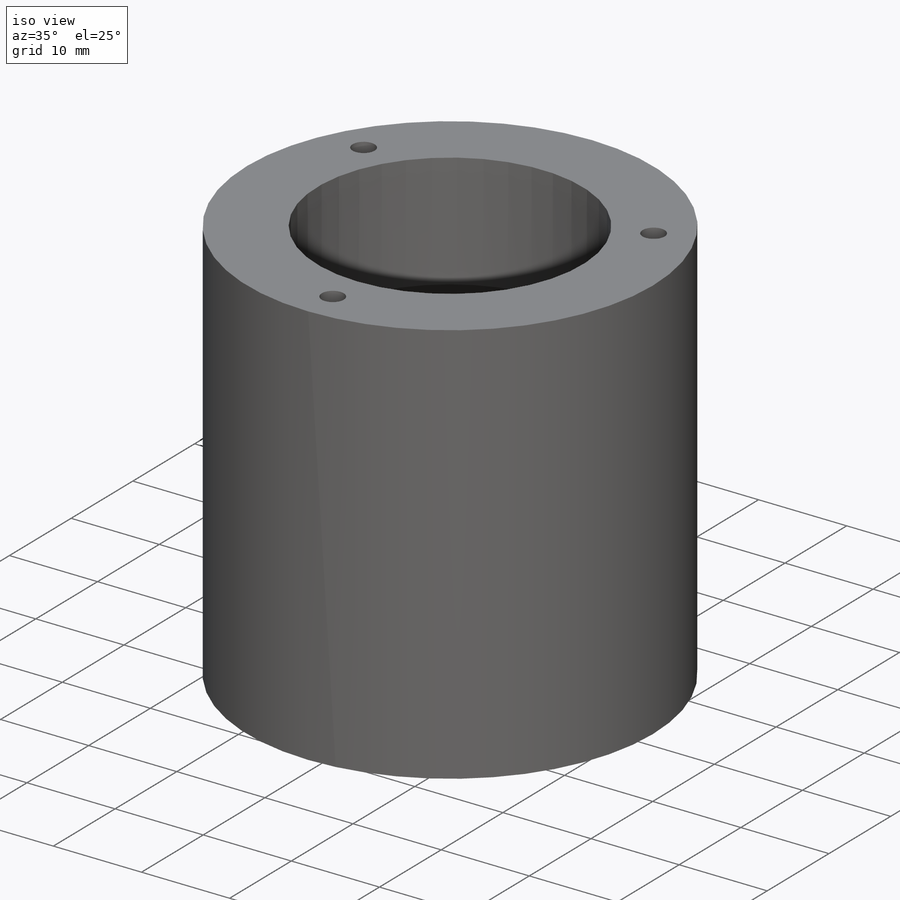
[diagram: iso view]
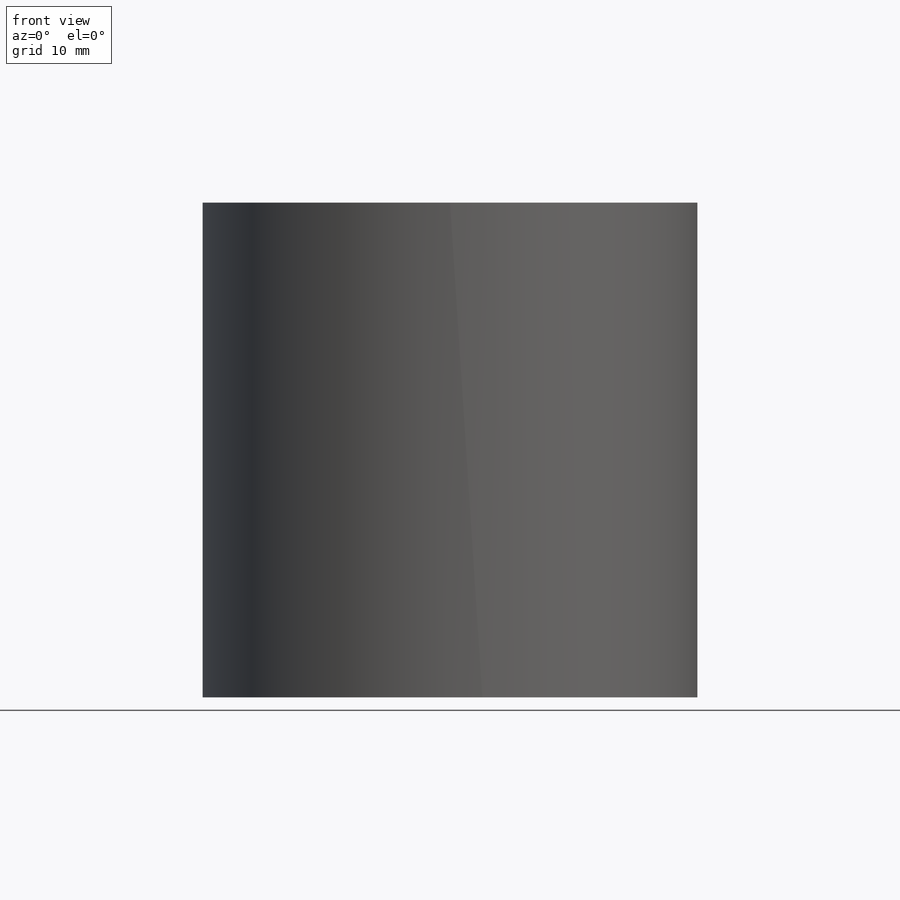
[diagram: front view]
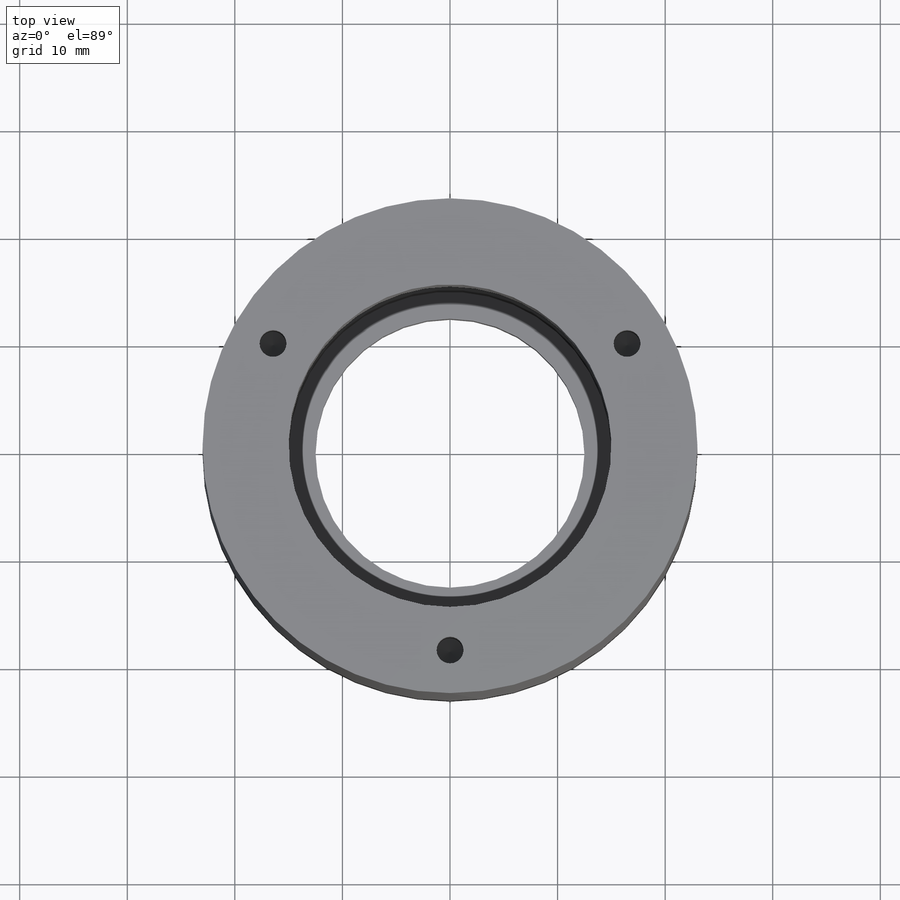
[diagram: top view]
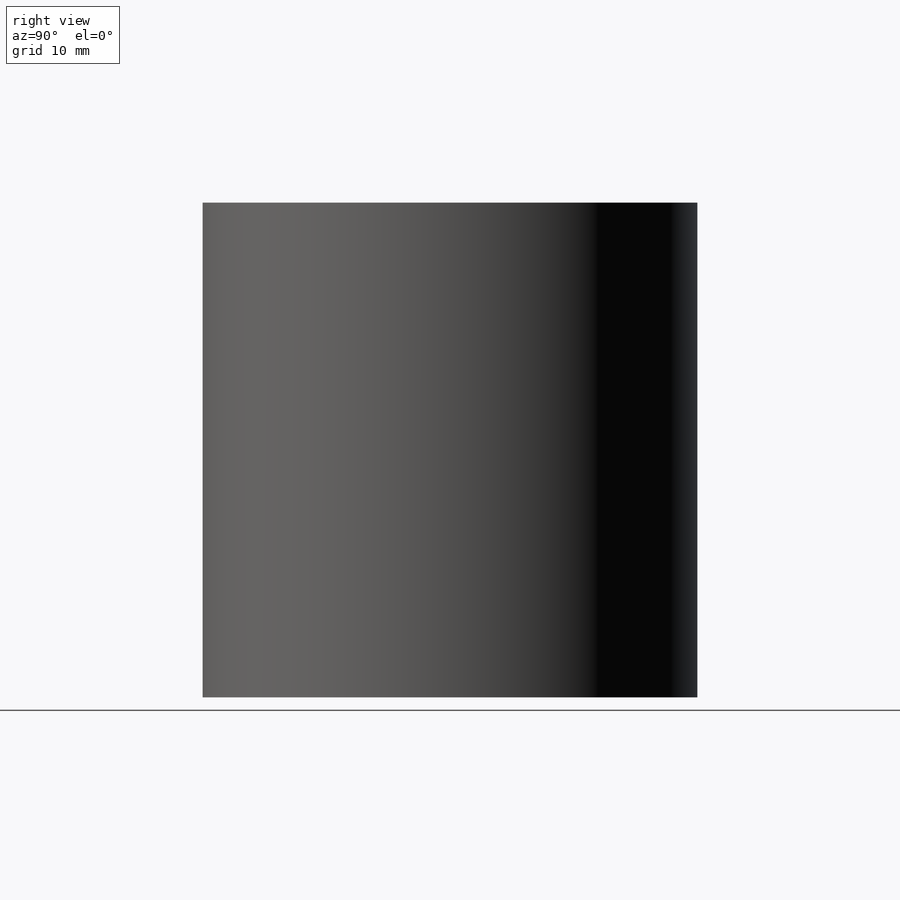
[diagram: right view]
SOLIDWORKS PART (.sldprt)
format: sldprt  version: not decoded by parser v0  size: 249,344 bytes
history: native  units: mm
features: sketch x6, plane x3, hole x2, thread x2, pattern_circular x2, material x1, revolve x1, cut_extrude x1 (+13 scaffold rows collapsed)
feature tree (31):
  scaffold x13  (default folders/planes/origin — collapsed)
  material  "3.1325 (EN-AW 2017A)"
  plane  "Plan de face"
  plane  "Plan de dessus"
  plane  "Plan de droite"
  sketch  "Esquisse1"  dims[D1=23.0mm D2=6.0mm D3=46.0mm D4=15.0mm D5=10.0mm D6=27.0mm D7=60.0deg]
  revolve  "Révolution1"  Angle=360deg
  sketch  "Esquisse2"  dims[D1=~12.659515mm]
  cut_extrude  "Enlèv. mat.-Extru.1"  [1 undecoded]
  hole  "Trou taraudé M51"  Diameter=4.2mm Depth=12mm
  sketch  "Esquisse4"  dims[D1=0.0mm D2=19.0mm]
  sketch  "Esquisse3"  dims[hole-wizard template sketch: 47 standard entries collapsed; hole parameters kept: c15.Profondeur du trou pour taraudage=12.0mm c15.D3=~14.816244mm c15.Angle de pointe=118.0deg]
  thread  "Filetage de perçage1"  Diameter=10mm  [1 undecoded]
  pattern_circular  "Répétition circulaire1"  Count=3 Angle=360deg
  hole  "Trou taraudé M31"  Diameter=2.5mm Depth=8.5mm
  sketch  "Esquisse8"  dims[D1=0.0mm D2=19.0mm]
  sketch  "Esquisse7"  dims[hole-wizard template sketch: 47 standard entries collapsed; hole parameters kept: c15.Profondeur du trou pour taraudage=8.5mm c15.D3=~14.816244mm c15.Angle de pointe=118.0deg]
  thread  "Filetage de perçage2"  Diameter=6mm  [1 undecoded]
  pattern_circular  "Répétition circulaire2"  Count=3 Angle=360deg
decode coverage: 13 of 14 modeling features carry decoded parameters
note: ~ marks probable driven/reference dimensions
note: 3 parameter values undecoded
note: suppression state not decoded; provenance and decode notes live in map.json
